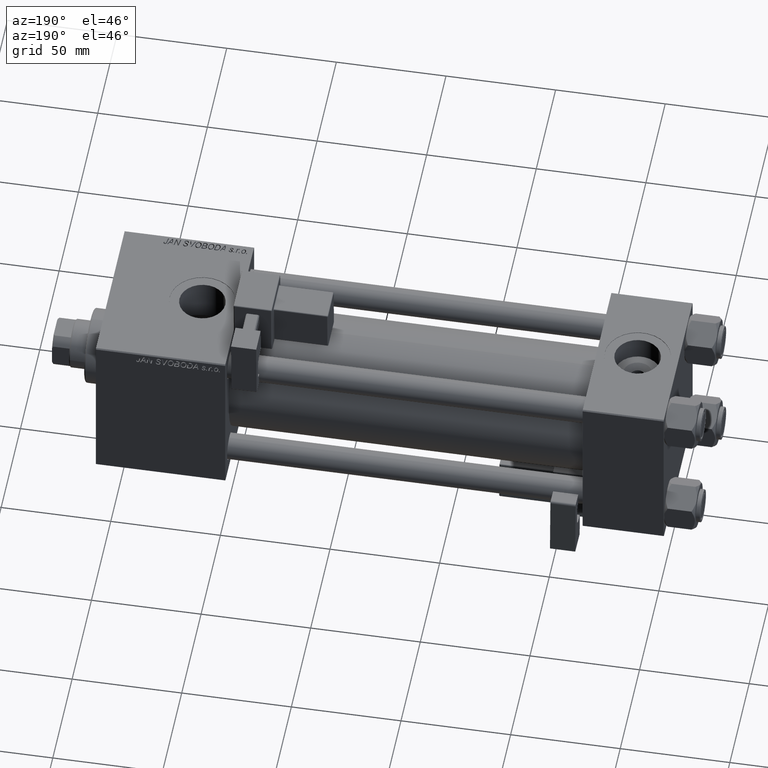
[diagram: clean part render]
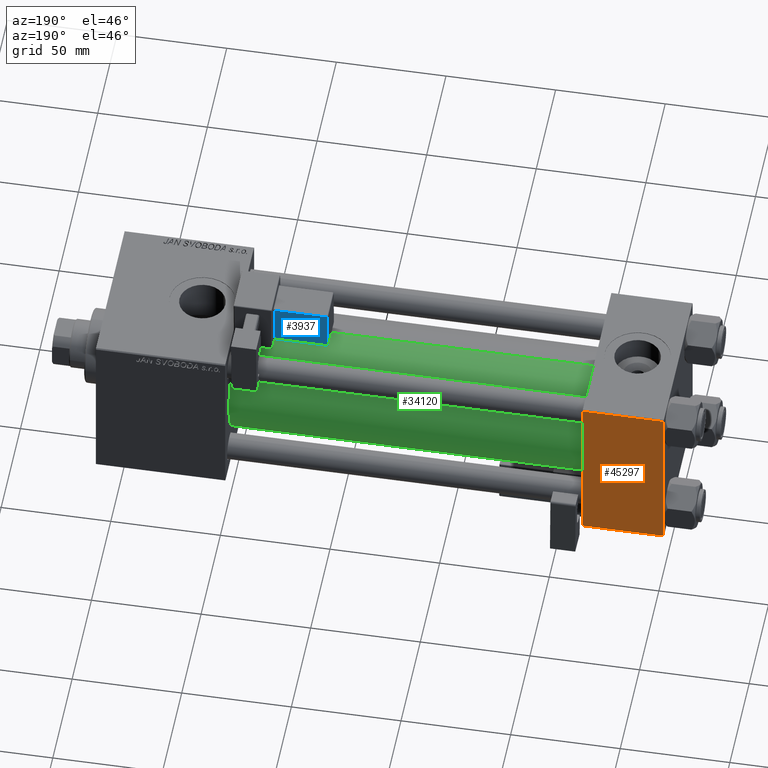
[diagram: same view with three faces highlighted in distinct colors, each labeled with its STEP entity id]
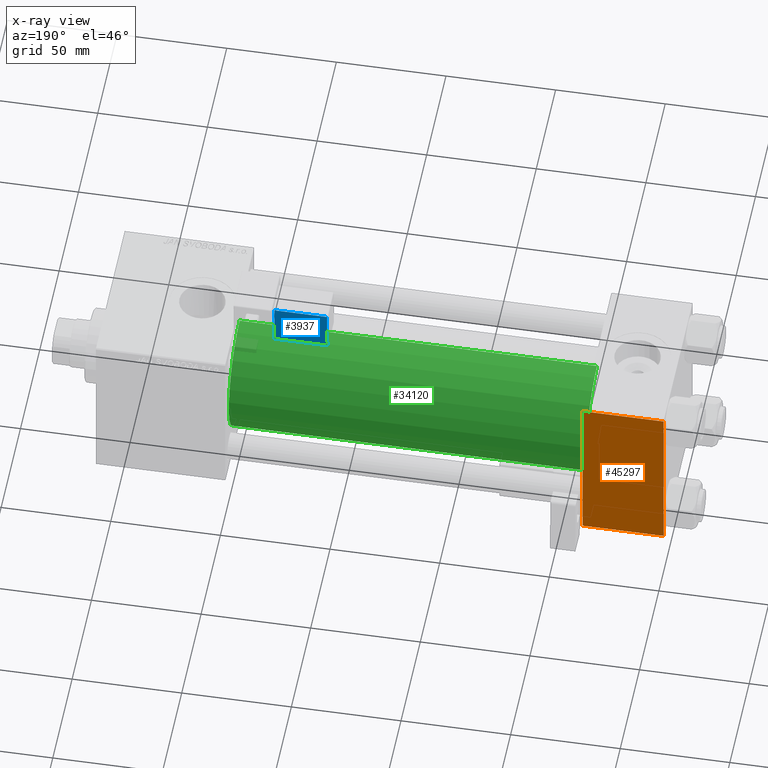
[diagram: x-ray of the same camera — body ghosted, the three highlighted faces saturated]
A machine part, auxiliary view with three faces highlighted in distinct colors.
The next image is the same camera in x-ray (body ghosted, the three faces saturated) — at least one of them is partly hidden behind the body in this view.
Their STEP definitions:

[orange] entity #45297 — the highlighted planar face has unit normal (0, 1, 0).
#3039 = DIRECTION ( 'NONE',  ( 0.000000000000000000, 0.000000000000000000, -1.000000000000000000 ) ) ;
#3304 = CARTESIAN_POINT ( 'NONE',  ( 37.00000000000000000, 37.49999999999999289, 37.00000000000000000 ) ) ;
#4169 = VECTOR ( 'NONE', #51851, 1000.000000000000000 ) ;
#6505 = DIRECTION ( 'NONE',  ( 0.000000000000000000, 0.000000000000000000, -1.000000000000000000 ) ) ;
#7733 = DIRECTION ( 'NONE',  ( -0.000000000000000000, 1.000000000000000000, 0.000000000000000000 ) ) ;
#8094 = EDGE_CURVE ( 'NONE', #8882, #46100, #47596, .T. ) ;
#8882 = VERTEX_POINT ( 'NONE', #29624 ) ;
#9449 = ORIENTED_EDGE ( 'NONE', *, *, #45574, .T. ) ;
#10931 = AXIS2_PLACEMENT_3D ( 'NONE', #40424, #7733, #24462 ) ;
#11705 = ORIENTED_EDGE ( 'NONE', *, *, #8094, .T. ) ;
#14930 = DIRECTION ( 'NONE',  ( 1.000000000000000000, 0.000000000000000000, 0.000000000000000000 ) ) ;
#15549 = VECTOR ( 'NONE', #3039, 1000.000000000000000 ) ;
#15556 = VECTOR ( 'NONE', #6505, 1000.000000000000000 ) ;
#15831 = ORIENTED_EDGE ( 'NONE', *, *, #20087, .T. ) ;
#16801 = VERTEX_POINT ( 'NONE', #3304 ) ;
#19693 = FACE_OUTER_BOUND ( 'NONE', #37853, .T. ) ;
#20087 = EDGE_CURVE ( 'NONE', #16801, #8882, #22964, .T. ) ;
#22964 = LINE ( 'NONE', #27484, #15549 ) ;
#24462 = DIRECTION ( 'NONE',  ( 0.000000000000000000, -0.000000000000000000, 1.000000000000000000 ) ) ;
#27484 = CARTESIAN_POINT ( 'NONE',  ( 37.00000000000000000, 37.49999999999999289, 37.50000000000000000 ) ) ;
#28121 = CARTESIAN_POINT ( 'NONE',  ( 0.000000000000000000, 37.49999999999999289, -36.99999999999998579 ) ) ;
#29624 = CARTESIAN_POINT ( 'NONE',  ( 37.00000000000000000, 37.49999999999999289, -36.99999999999998579 ) ) ;
#30875 = CARTESIAN_POINT ( 'NONE',  ( 37.00000000000000000, 37.49999999999999289, 37.00000000000000000 ) ) ;
#32876 = VECTOR ( 'NONE', #14930, 1000.000000000000000 ) ;
#32971 = EDGE_CURVE ( 'NONE', #44507, #46100, #36445, .T. ) ;
#35635 = CARTESIAN_POINT ( 'NONE',  ( 37.00000000000000000, 37.49999999999999289, -36.99999999999998579 ) ) ;
#36445 = LINE ( 'NONE', #36706, #15556 ) ;
#36706 = CARTESIAN_POINT ( 'NONE',  ( 0.000000000000000000, 37.49999999999999289, 37.50000000000000000 ) ) ;
#37853 = EDGE_LOOP ( 'NONE', ( #15831, #11705, #50392, #9449 ) ) ;
#39628 = CARTESIAN_POINT ( 'NONE',  ( 0.000000000000000000, 37.49999999999999289, 37.00000000000000000 ) ) ;
#40424 = CARTESIAN_POINT ( 'NONE',  ( 37.00000000000000000, 37.49999999999999289, 37.50000000000000000 ) ) ;
#44136 = PLANE ( 'NONE',  #10931 ) ;
#44507 = VERTEX_POINT ( 'NONE', #39628 ) ;
#45297 = ADVANCED_FACE ( 'NONE', ( #19693 ), #44136, .T. ) ;
#45574 = EDGE_CURVE ( 'NONE', #44507, #16801, #51340, .T. ) ;
#46100 = VERTEX_POINT ( 'NONE', #28121 ) ;
#47596 = LINE ( 'NONE', #35635, #4169 ) ;
#50392 = ORIENTED_EDGE ( 'NONE', *, *, #32971, .F. ) ;
#51340 = LINE ( 'NONE', #30875, #32876 ) ;
#51851 = DIRECTION ( 'NONE',  ( -1.000000000000000000, 0.000000000000000000, 0.000000000000000000 ) ) ;

[blue] entity #3937 — the highlighted planar face has unit normal (-0, -0.9994, 0.0353).
#524 = VECTOR ( 'NONE', #27153, 1000.000000000000000 ) ;
#2521 = CARTESIAN_POINT ( 'NONE',  ( 33.75000000000000000, -21.24999999999999645, 2.500000000000009326 ) ) ;
#3034 = LINE ( 'NONE', #2521, #42988 ) ;
#3937 = ADVANCED_FACE ( 'NONE', ( #8041 ), #23454, .F. ) ;
#4312 = DIRECTION ( 'NONE',  ( 0.000000000000000000, -0.000000000000000000, -1.000000000000000000 ) ) ;
#4792 = DIRECTION ( 'NONE',  ( 1.000000000000000000, -0.000000000000000000, 1.334402673828313339E-16 ) ) ;
#5126 = VERTEX_POINT ( 'NONE', #11589 ) ;
#6904 = CARTESIAN_POINT ( 'NONE',  ( 9.250000000000005329, -21.24999999999999645, 2.500000000000005773 ) ) ;
#7532 = DIRECTION ( 'NONE',  ( -1.000000000000000000, 0.000000000000000000, -1.334402673828313339E-16 ) ) ;
#8041 = FACE_OUTER_BOUND ( 'NONE', #23686, .T. ) ;
#10674 = ORIENTED_EDGE ( 'NONE', *, *, #40167, .T. ) ;
#10854 = ORIENTED_EDGE ( 'NONE', *, *, #23665, .T. ) ;
#11589 = CARTESIAN_POINT ( 'NONE',  ( 9.250000000000001776, -21.24999999999999645, 21.50000000000000355 ) ) ;
#12252 = LINE ( 'NONE', #44406, #48243 ) ;
#15770 = CARTESIAN_POINT ( 'NONE',  ( 33.75000000000000000, -21.24999999999999645, 22.00000000000001066 ) ) ;
#19752 = CARTESIAN_POINT ( 'NONE',  ( 9.250000000000001776, -21.24999999999999645, 22.00000000000000711 ) ) ;
#23454 = PLANE ( 'NONE',  #42784 ) ;
#23665 = EDGE_CURVE ( 'NONE', #33168, #5126, #51665, .T. ) ;
#23686 = EDGE_LOOP ( 'NONE', ( #10674, #10854, #45646, #30961 ) ) ;
#25683 = VERTEX_POINT ( 'NONE', #38438 ) ;
#26696 = VECTOR ( 'NONE', #28255, 1000.000000000000000 ) ;
#27153 = DIRECTION ( 'NONE',  ( 1.734723475976807587E-16, -0.000000000000000000, -1.000000000000000000 ) ) ;
#28255 = DIRECTION ( 'NONE',  ( -1.334402673828313339E-16, 0.000000000000000000, 1.000000000000000000 ) ) ;
#28833 = VERTEX_POINT ( 'NONE', #34186 ) ;
#29392 = EDGE_CURVE ( 'NONE', #25683, #28833, #34872, .T. ) ;
#30961 = ORIENTED_EDGE ( 'NONE', *, *, #29392, .T. ) ;
#33168 = VERTEX_POINT ( 'NONE', #6904 ) ;
#34186 = CARTESIAN_POINT ( 'NONE',  ( 33.25000000000000000, -21.24999999999999645, 2.500000000000009326 ) ) ;
#34872 = LINE ( 'NONE', #39123, #524 ) ;
#38438 = CARTESIAN_POINT ( 'NONE',  ( 33.25000000000000000, -21.24999999999999645, 21.50000000000000711 ) ) ;
#39123 = CARTESIAN_POINT ( 'NONE',  ( 33.25000000000000000, -21.24999999999999645, 2.000000000000010214 ) ) ;
#40167 = EDGE_CURVE ( 'NONE', #28833, #33168, #3034, .T. ) ;
#42784 = AXIS2_PLACEMENT_3D ( 'NONE', #15770, #44707, #4312 ) ;
#42988 = VECTOR ( 'NONE', #7532, 1000.000000000000000 ) ;
#44406 = CARTESIAN_POINT ( 'NONE',  ( 33.75000000000000000, -21.24999999999999645, 21.50000000000000711 ) ) ;
#44707 = DIRECTION ( 'NONE',  ( 0.000000000000000000, -1.000000000000000000, 0.000000000000000000 ) ) ;
#45646 = ORIENTED_EDGE ( 'NONE', *, *, #48445, .T. ) ;
#48243 = VECTOR ( 'NONE', #4792, 1000.000000000000000 ) ;
#48445 = EDGE_CURVE ( 'NONE', #5126, #25683, #12252, .T. ) ;
#51665 = LINE ( 'NONE', #19752, #26696 ) ;

[green] entity #34120 — the highlighted cylindrical surface (partial cylindrical patch) has radius 28 mm, axis along (-1, -0, -0).
#179 = EDGE_CURVE ( 'NONE', #16334, #47756, #35862, .T. ) ;
#754 = LINE ( 'NONE', #21724, #35718 ) ;
#1183 = LINE ( 'NONE', #9412, #39696 ) ;
#1326 = CARTESIAN_POINT ( 'NONE',  ( 37.00000000000000711, -2.602085213965210642E-15, 0.000000000000000000 ) ) ;
#4350 = CARTESIAN_POINT ( 'NONE',  ( 200.0000000000000000, -2.602085213965210642E-15, 0.000000000000000000 ) ) ;
#5566 = ORIENTED_EDGE ( 'NONE', *, *, #43263, .T. ) ;
#6935 = EDGE_LOOP ( 'NONE', ( #39045, #5566, #14911, #18579 ) ) ;
#9412 = CARTESIAN_POINT ( 'NONE',  ( 200.0000000000000000, 8.269258236473784371E-16, -28.00000000000000000 ) ) ;
#10120 = CARTESIAN_POINT ( 'NONE',  ( 200.0000000000000000, -2.602085213965210642E-15, 0.000000000000000000 ) ) ;
#13826 = DIRECTION ( 'NONE',  ( 0.000000000000000000, 0.000000000000000000, -1.000000000000000000 ) ) ;
#14911 = ORIENTED_EDGE ( 'NONE', *, *, #179, .T. ) ;
#15230 = EDGE_CURVE ( 'NONE', #32404, #47756, #754, .T. ) ;
#16334 = VERTEX_POINT ( 'NONE', #42746 ) ;
#18579 = ORIENTED_EDGE ( 'NONE', *, *, #15230, .F. ) ;
#19637 = CARTESIAN_POINT ( 'NONE',  ( 37.00000000000000711, -2.602085213965210642E-15, 28.00000000000000000 ) ) ;
#21079 = DIRECTION ( 'NONE',  ( -1.000000000000000000, -0.000000000000000000, -0.000000000000000000 ) ) ;
#21724 = CARTESIAN_POINT ( 'NONE',  ( 200.0000000000000000, -2.602085213965210642E-15, 28.00000000000000000 ) ) ;
#22586 = DIRECTION ( 'NONE',  ( 1.000000000000000000, 0.000000000000000000, 0.000000000000000000 ) ) ;
#25073 = CYLINDRICAL_SURFACE ( 'NONE', #29167, 28.00000000000000000 ) ;
#25754 = DIRECTION ( 'NONE',  ( 1.000000000000000000, -0.000000000000000000, 0.000000000000000000 ) ) ;
#28830 = DIRECTION ( 'NONE',  ( -1.000000000000000000, -0.000000000000000000, -0.000000000000000000 ) ) ;
#29167 = AXIS2_PLACEMENT_3D ( 'NONE', #4350, #21079, #48744 ) ;
#30655 = EDGE_CURVE ( 'NONE', #41435, #32404, #47317, .T. ) ;
#32404 = VERTEX_POINT ( 'NONE', #36000 ) ;
#32521 = FACE_OUTER_BOUND ( 'NONE', #6935, .T. ) ;
#34120 = ADVANCED_FACE ( 'NONE', ( #32521 ), #25073, .T. ) ;
#35718 = VECTOR ( 'NONE', #37161, 1000.000000000000000 ) ;
#35862 = CIRCLE ( 'NONE', #47730, 28.00000000000000000 ) ;
#36000 = CARTESIAN_POINT ( 'NONE',  ( 200.0000000000000000, -2.602085213965210642E-15, 28.00000000000000000 ) ) ;
#37161 = DIRECTION ( 'NONE',  ( -1.000000000000000000, -0.000000000000000000, -0.000000000000000000 ) ) ;
#37997 = DIRECTION ( 'NONE',  ( 0.000000000000000000, 0.000000000000000000, 1.000000000000000000 ) ) ;
#38235 = CARTESIAN_POINT ( 'NONE',  ( 200.0000000000000000, 8.269258236473784371E-16, -28.00000000000000000 ) ) ;
#39045 = ORIENTED_EDGE ( 'NONE', *, *, #30655, .F. ) ;
#39696 = VECTOR ( 'NONE', #28830, 1000.000000000000000 ) ;
#40520 = AXIS2_PLACEMENT_3D ( 'NONE', #10120, #22586, #13826 ) ;
#41435 = VERTEX_POINT ( 'NONE', #38235 ) ;
#42746 = CARTESIAN_POINT ( 'NONE',  ( 37.00000000000000711, 8.269258236473784371E-16, -28.00000000000000000 ) ) ;
#43263 = EDGE_CURVE ( 'NONE', #41435, #16334, #1183, .T. ) ;
#47317 = CIRCLE ( 'NONE', #40520, 28.00000000000000000 ) ;
#47730 = AXIS2_PLACEMENT_3D ( 'NONE', #1326, #25754, #37997 ) ;
#47756 = VERTEX_POINT ( 'NONE', #19637 ) ;
#48744 = DIRECTION ( 'NONE',  ( 0.000000000000000000, 0.000000000000000000, 1.000000000000000000 ) ) ;